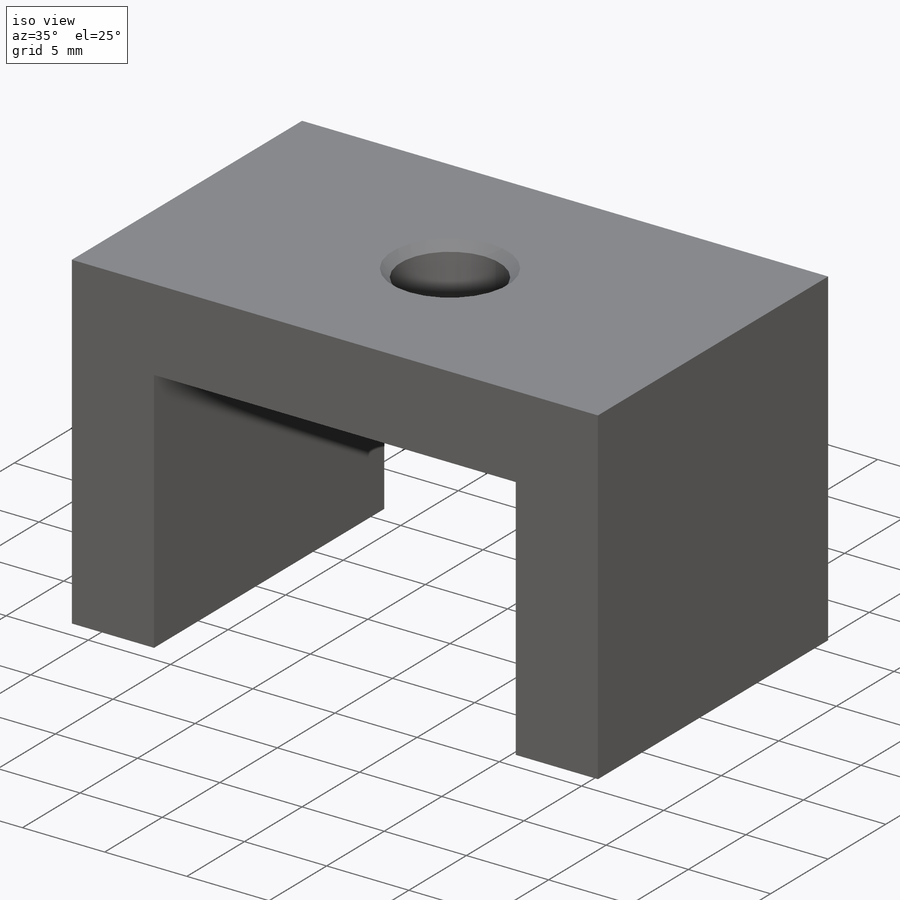
[diagram: iso view]
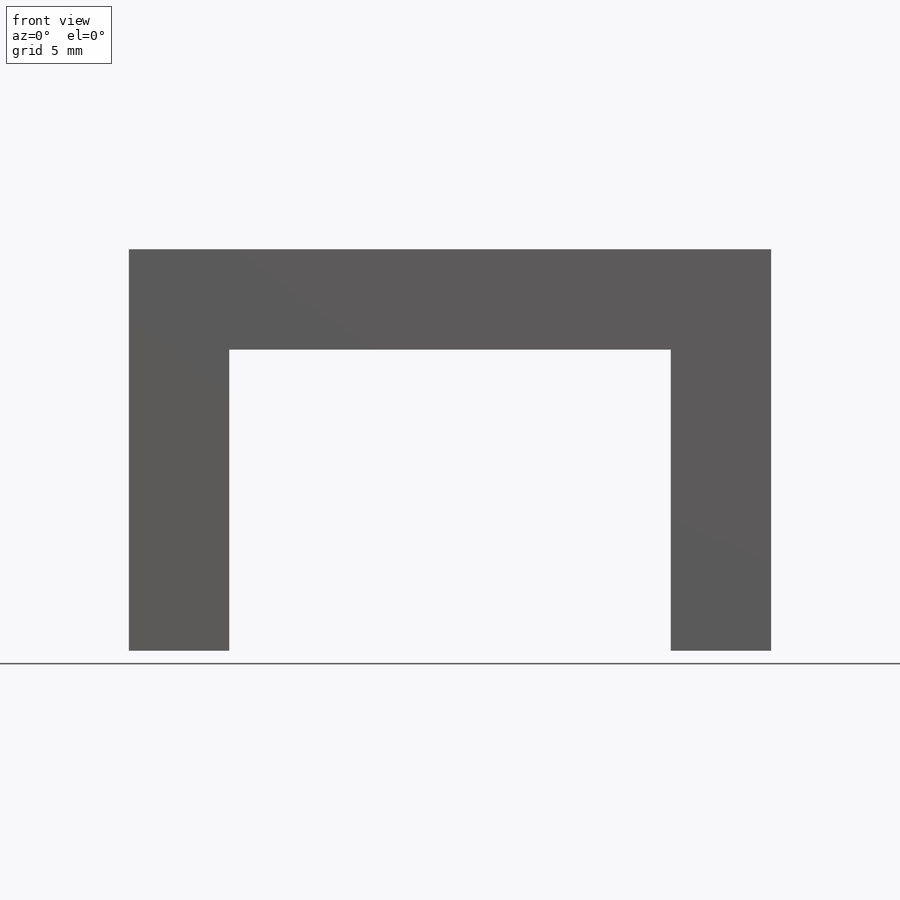
[diagram: front view]
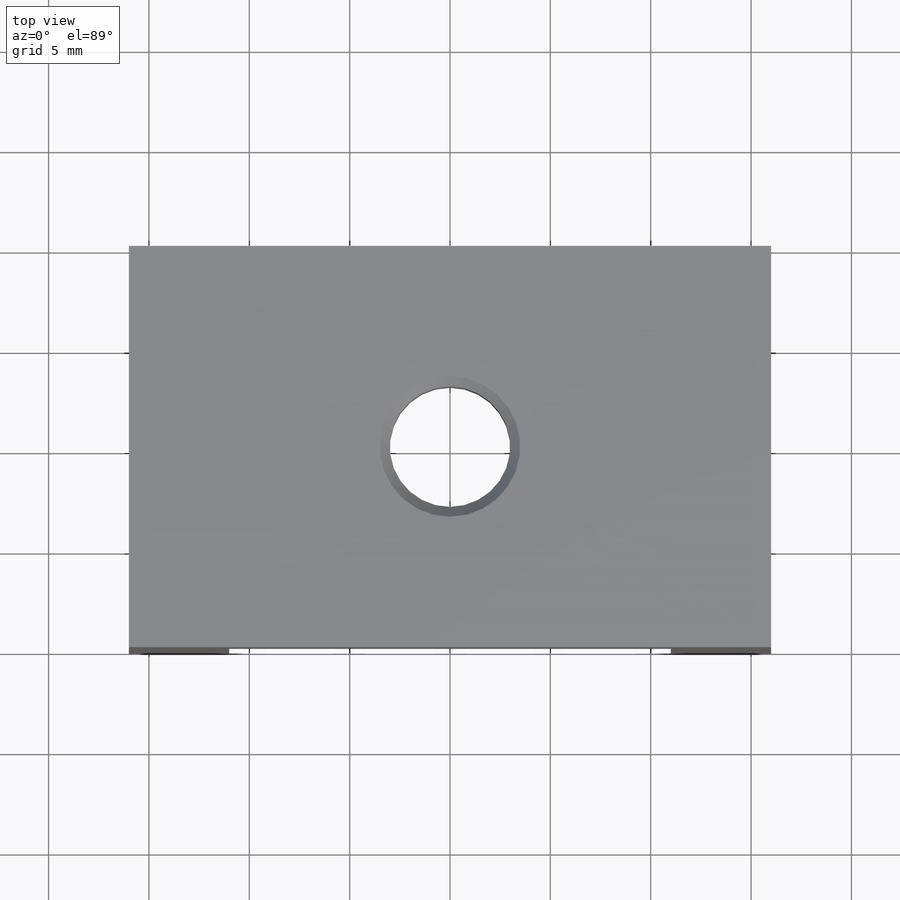
[diagram: top view]
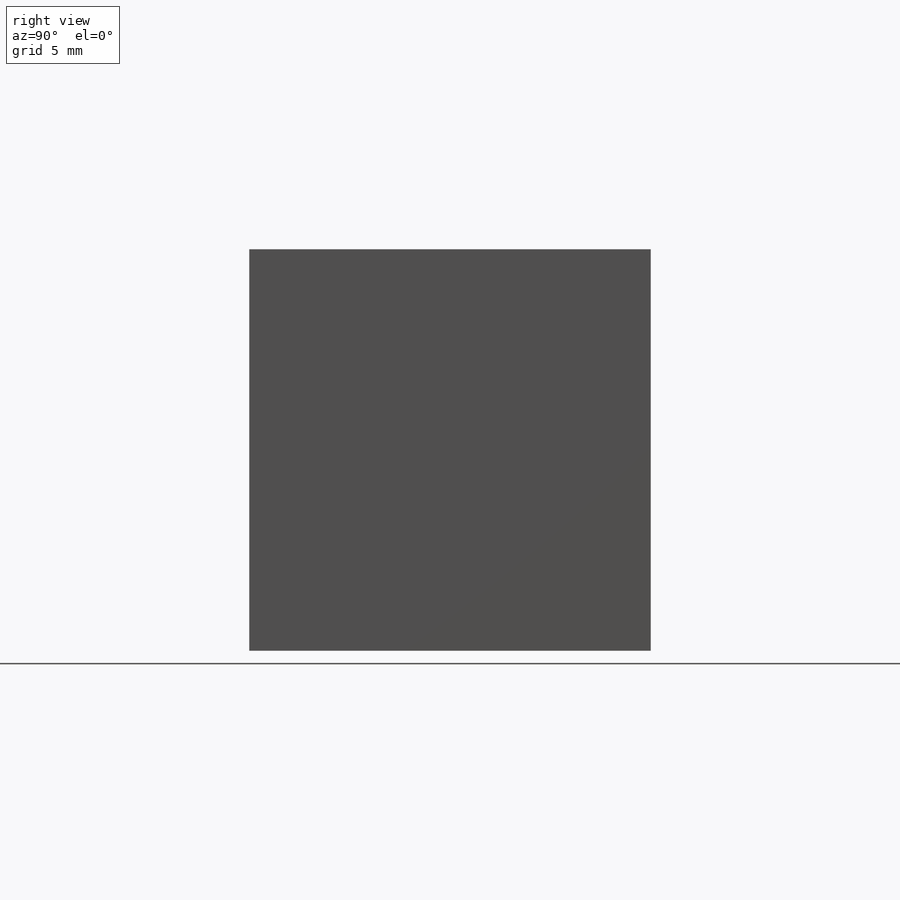
[diagram: right view]
SOLIDWORKS PART (.sldprt)
format: sldprt  version: not decoded by parser v0  size: 229,376 bytes
history: native  units: mm
features: sketch x4, thread x4, plane x3, material x1, extrude x1, cut_extrude x1, chamfer x1, hole x1 (+8 scaffold rows collapsed)
feature tree (24):
  scaffold x8  (default folders/planes/origin — collapsed)
  material  "2014-O"
  plane  "Plan de face"
  plane  "Plan de dessus"
  plane  "Plan de droite"
  sketch  "Esquisse1"  dims[D1=22.0mm D2=5.0mm D3=15.0mm D4=5.0mm D5=20.0mm]
  extrude  "Boss.-Extru.1"  Depth=20mm
  sketch  "Esquisse2"  dims[c1.D1=~7.216442mm c1.D2=~7.216442mm c2.D1=10.0mm]
  cut_extrude  "Enlèv. mat.-Extru.1"  [1 undecoded]
  chamfer  "Chanfrein1"  Distance=0.5mm Angle=45deg
  hole  "Trou taraudé M41"  Diameter=3.3mm Depth=10.1mm
  sketch  "Esquisse4"  dims[D1=2.5mm D2=2.5mm D3=15.0mm D4=5.0mm]
  sketch  "Esquisse3"  dims[hole-wizard template sketch: 47 standard entries collapsed; hole parameters kept: c15.Profondeur du trou pour taraudage=10.1mm c15.D3=~14.816244mm c15.Angle de pointe=118.0deg]
  thread  "Filetage de perçage3"  Diameter=8mm  [1 undecoded]
  thread  "Filetage de perçage4"  Diameter=8mm  [1 undecoded]
  thread  "Filetage de perçage5"  Diameter=8mm  [1 undecoded]
  thread  "Filetage de perçage6"  Diameter=8mm  [1 undecoded]
decode coverage: 11 of 12 modeling features carry decoded parameters
note: ~ marks probable driven/reference dimensions
note: 5 parameter values undecoded
note: suppression state not decoded; provenance and decode notes live in map.json
